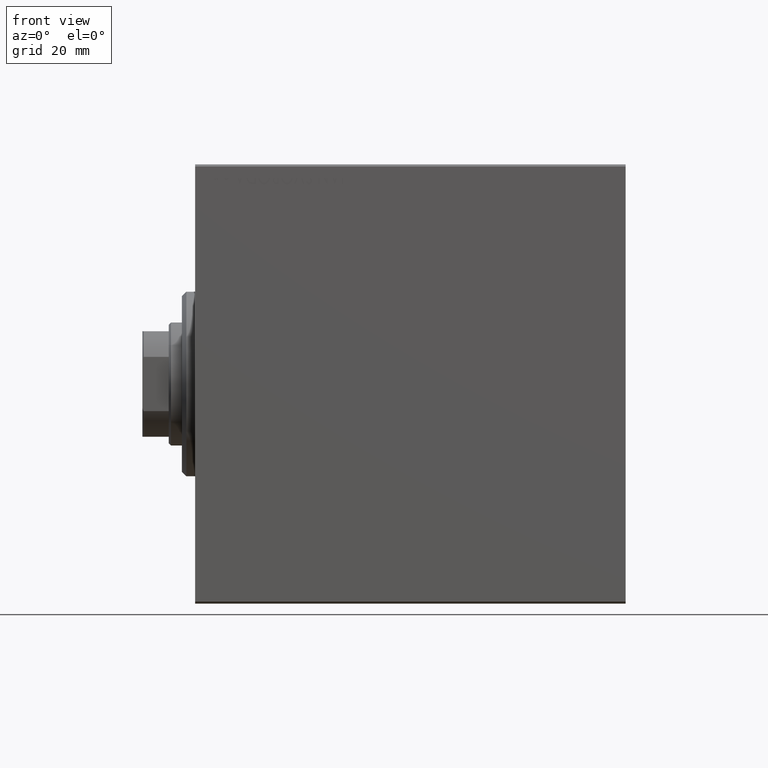
[diagram: clean part render]
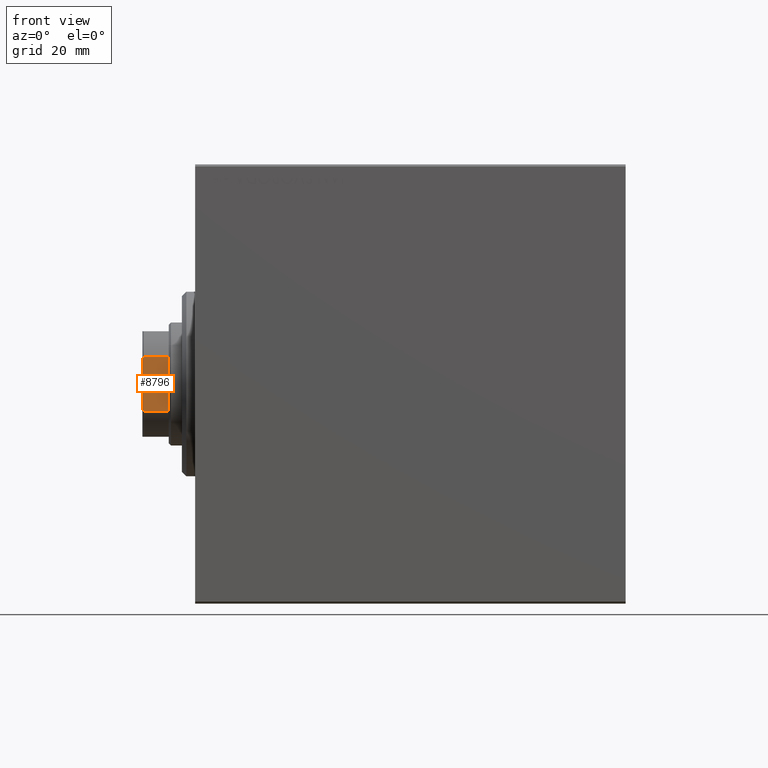
[diagram: same view with one face highlighted and labeled with its STEP entity id]
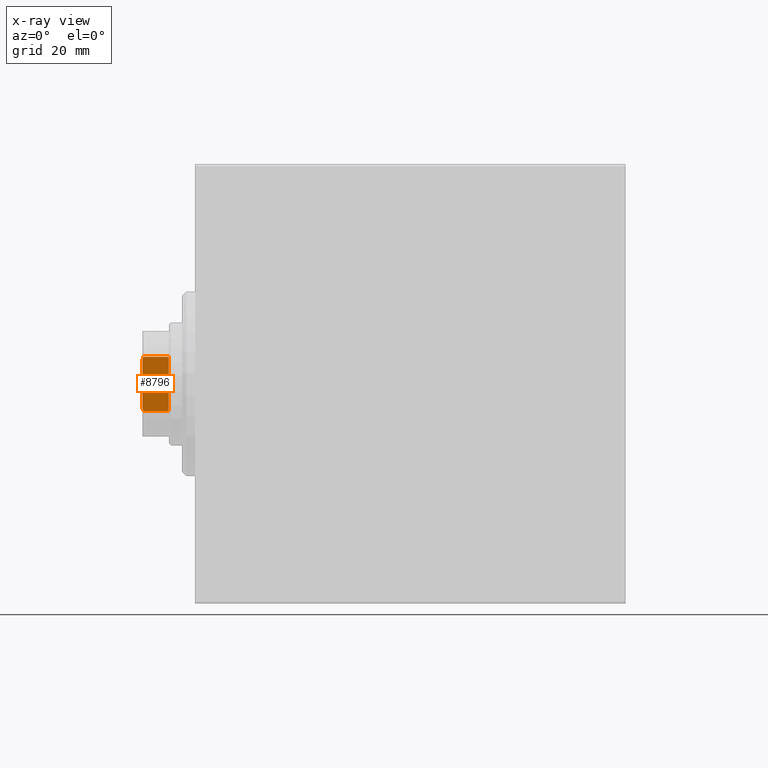
[diagram: x-ray of the same camera — body ghosted, the highlighted face saturated]
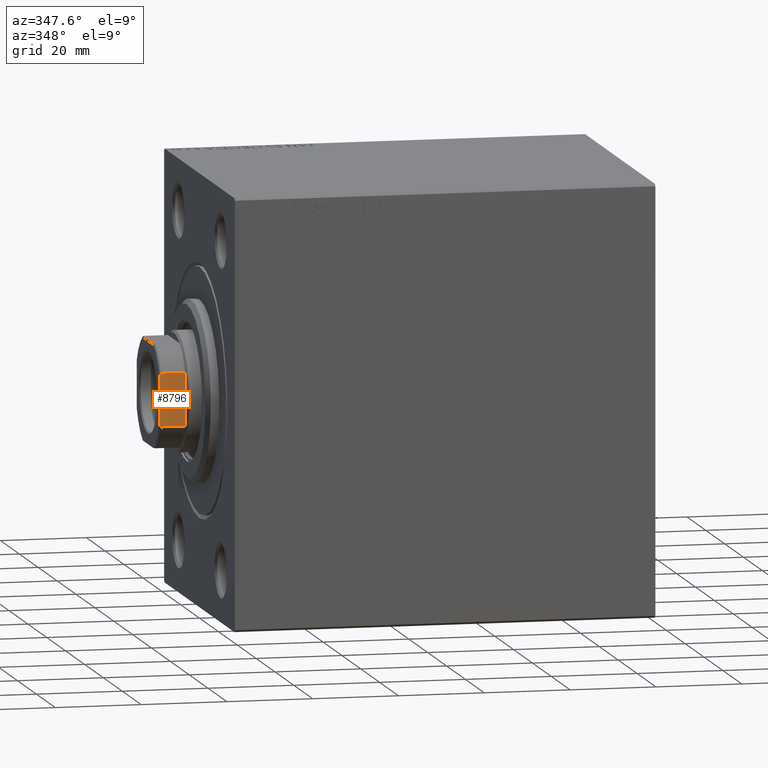
[diagram: same view with one face highlighted and labeled with its STEP entity id]
A machine part, front view. The second image highlights one B-rep face of the part: STEP entity #8796.
The next image is the same camera in x-ray: the body ghosted, the highlighted face saturated — about 0% of this face is hidden behind the body in this view.
A second angle (auxiliary view) of the same face is appended — the face is thin or edge-on in the first view.
In plain terms, the highlighted planar face has unit normal (0, 1, 0).
Its self-contained STEP definition (entity closure, byte-faithful):
#143 = CARTESIAN_POINT ( 'NONE',  ( 6.184658438426501093, -11.99999999999999645, 95.69999999999998863 ) ) ;
#677 = CARTESIAN_POINT ( 'NONE',  ( -11.99999999999999822, -12.00000000000000355, 96.00000000000000000 ) ) ;
#780 = VERTEX_POINT ( 'NONE', #2740 ) ;
#1978 = EDGE_CURVE ( 'NONE', #17351, #42326, #40560, .T. ) ;
#2740 = CARTESIAN_POINT ( 'NONE',  ( -6.184658438426501093, -11.99999999999999645, 95.70000000000001705 ) ) ;
#3217 = LINE ( 'NONE', #26824, #13200 ) ;
#3650 = DIRECTION ( 'NONE',  ( -0.000000000000000000, -0.000000000000000000, 1.000000000000000000 ) ) ;
#5111 = ORIENTED_EDGE ( 'NONE', *, *, #41861, .F. ) ;
#6282 = CARTESIAN_POINT ( 'NONE',  ( 6.184658438426501093, -11.99999999999999645, 89.99999999999998579 ) ) ;
#7436 = DIRECTION ( 'NONE',  ( 0.000000000000000000, -0.000000000000000000, 1.000000000000000000 ) ) ;
#8202 = VERTEX_POINT ( 'NONE', #21238 ) ;
#8580 = EDGE_CURVE ( 'NONE', #14439, #780, #41669, .T. ) ;
#8796 = ADVANCED_FACE ( 'NONE', ( #41594 ), #17089, .F. ) ;
#9594 = CARTESIAN_POINT ( 'NONE',  ( -11.99999999999999822, -12.00000000000000355, 96.00000000000000000 ) ) ;
#10471 = DIRECTION ( 'NONE',  ( -0.000000000000000000, -0.000000000000000000, 1.000000000000000000 ) ) ;
#12309 = CARTESIAN_POINT ( 'NONE',  ( -5.499090833947052559, -12.00000000000000355, 96.00000000000000000 ) ) ;
#13200 = VECTOR ( 'NONE', #3650, 1000.000000000000000 ) ;
#14061 = LINE ( 'NONE', #33871, #19977 ) ;
#14439 = VERTEX_POINT ( 'NONE', #12309 ) ;
#15760 = CARTESIAN_POINT ( 'NONE',  ( -5.729389212963472033, -12.00000000000000355, 95.90405820415742255 ) ) ;
#16542 = DIRECTION ( 'NONE',  ( 1.000000000000000000, 0.000000000000000000, 0.000000000000000000 ) ) ;
#16663 = ORIENTED_EDGE ( 'NONE', *, *, #41965, .T. ) ;
#16832 = ORIENTED_EDGE ( 'NONE', *, *, #1978, .T. ) ;
#17083 = EDGE_LOOP ( 'NONE', ( #16663, #34882, #5111, #34005, #25616, #16832 ) ) ;
#17089 = PLANE ( 'NONE',  #25498 ) ;
#17351 = VERTEX_POINT ( 'NONE', #29018 ) ;
#19977 = VECTOR ( 'NONE', #10471, 1000.000000000000000 ) ;
#21238 = CARTESIAN_POINT ( 'NONE',  ( 6.184658438426501093, -11.99999999999999645, 95.69999999999998863 ) ) ;
#23468 = CARTESIAN_POINT ( 'NONE',  ( -11.99999999999999822, -12.00000000000000355, 90.00000000000000000 ) ) ;
#24600 = VECTOR ( 'NONE', #30452, 1000.000000000000000 ) ;
#25498 = AXIS2_PLACEMENT_3D ( 'NONE', #677, #31047, #7436 ) ;
#25616 = ORIENTED_EDGE ( 'NONE', *, *, #26491, .F. ) ;
#26491 = EDGE_CURVE ( 'NONE', #17351, #780, #3217, .T. ) ;
#26824 = CARTESIAN_POINT ( 'NONE',  ( -6.184658438426501093, -11.99999999999999645, -0.001000000000001000089 ) ) ;
#27798 = CARTESIAN_POINT ( 'NONE',  ( 5.957846001622724152, -11.99999999999999645, 95.80390795934953019 ) ) ;
#28511 = EDGE_CURVE ( 'NONE', #8202, #28794, #31079, .T. ) ;
#28794 = VERTEX_POINT ( 'NONE', #40576 ) ;
#29018 = CARTESIAN_POINT ( 'NONE',  ( -6.184658438426501093, -11.99999999999999645, 89.99999999999998579 ) ) ;
#29501 = CARTESIAN_POINT ( 'NONE',  ( -6.184658438426501093, -11.99999999999999645, 95.70000000000001705 ) ) ;
#30452 = DIRECTION ( 'NONE',  ( 1.000000000000000000, 0.000000000000000000, 0.000000000000000000 ) ) ;
#31047 = DIRECTION ( 'NONE',  ( 0.000000000000000000, 1.000000000000000000, 0.000000000000000000 ) ) ;
#31079 = B_SPLINE_CURVE_WITH_KNOTS ( 'NONE', 3,
 ( #143, #27798, #41506, #37277 ),
 .UNSPECIFIED., .F., .F.,
 ( 4, 4 ),
 ( 0.000000000000000000, 0.0007483334419306215523 ),
 .UNSPECIFIED. ) ;
#33539 = CARTESIAN_POINT ( 'NONE',  ( -5.499090833947052559, -12.00000000000000355, 96.00000000000000000 ) ) ;
#33652 = LINE ( 'NONE', #9594, #42962 ) ;
#33871 = CARTESIAN_POINT ( 'NONE',  ( 6.184658438426501093, -11.99999999999999645, -0.001000000000001000089 ) ) ;
#34005 = ORIENTED_EDGE ( 'NONE', *, *, #8580, .T. ) ;
#34882 = ORIENTED_EDGE ( 'NONE', *, *, #28511, .T. ) ;
#37277 = CARTESIAN_POINT ( 'NONE',  ( 5.499090833947025914, -12.00000000000000355, 96.00000000000000000 ) ) ;
#39845 = CARTESIAN_POINT ( 'NONE',  ( -5.957846001622733034, -12.00000000000000355, 95.80390795934954440 ) ) ;
#40560 = LINE ( 'NONE', #23468, #24600 ) ;
#40576 = CARTESIAN_POINT ( 'NONE',  ( 5.499090833947025914, -12.00000000000000355, 96.00000000000000000 ) ) ;
#41506 = CARTESIAN_POINT ( 'NONE',  ( 5.729389212963454270, -12.00000000000000355, 95.90405820415740834 ) ) ;
#41594 = FACE_OUTER_BOUND ( 'NONE', #17083, .T. ) ;
#41669 = B_SPLINE_CURVE_WITH_KNOTS ( 'NONE', 3,
 ( #33539, #15760, #39845, #29501 ),
 .UNSPECIFIED., .F., .F.,
 ( 4, 4 ),
 ( 0.000000000000000000, 0.0007483334419305857736 ),
 .UNSPECIFIED. ) ;
#41861 = EDGE_CURVE ( 'NONE', #14439, #28794, #33652, .T. ) ;
#41965 = EDGE_CURVE ( 'NONE', #42326, #8202, #14061, .T. ) ;
#42326 = VERTEX_POINT ( 'NONE', #6282 ) ;
#42962 = VECTOR ( 'NONE', #16542, 1000.000000000000000 ) ;